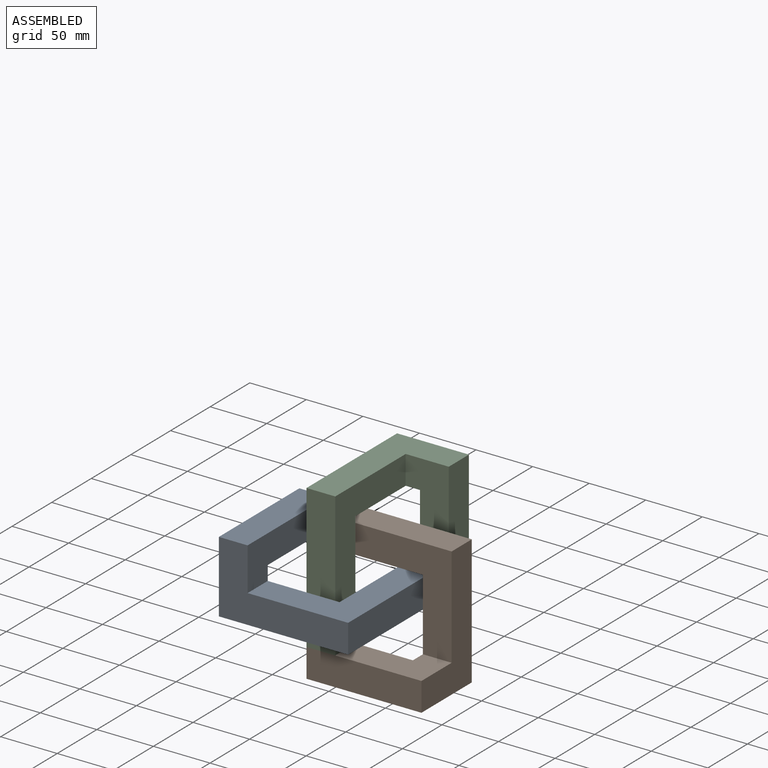
[diagram: assembled view]
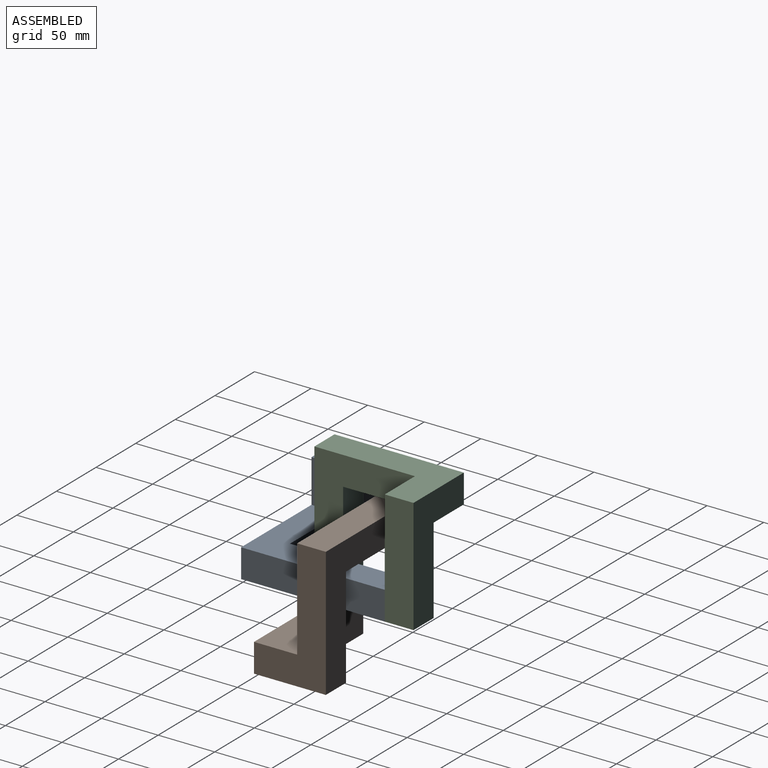
[diagram: assembled view, second angle]
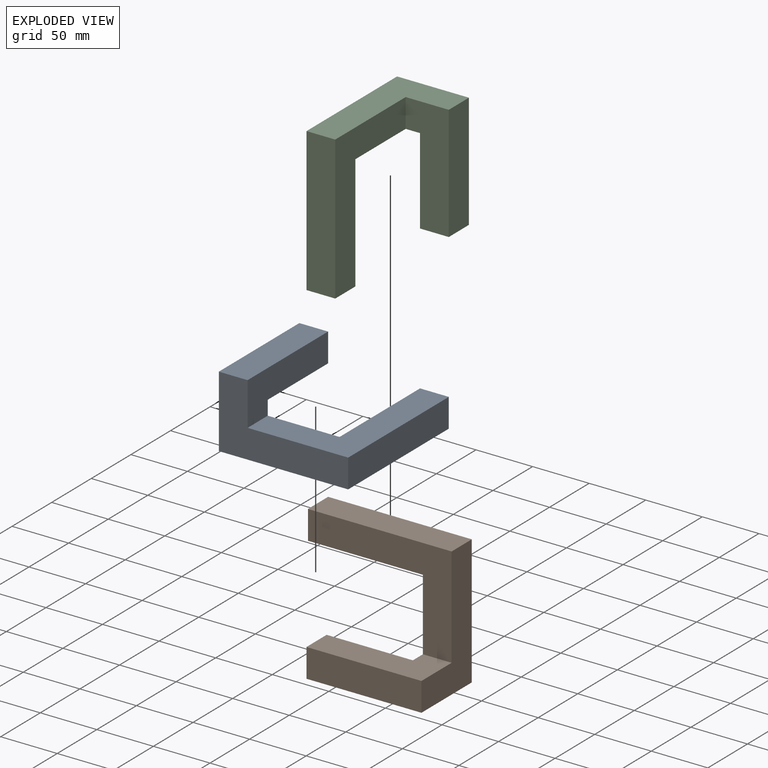
[diagram: exploded view]
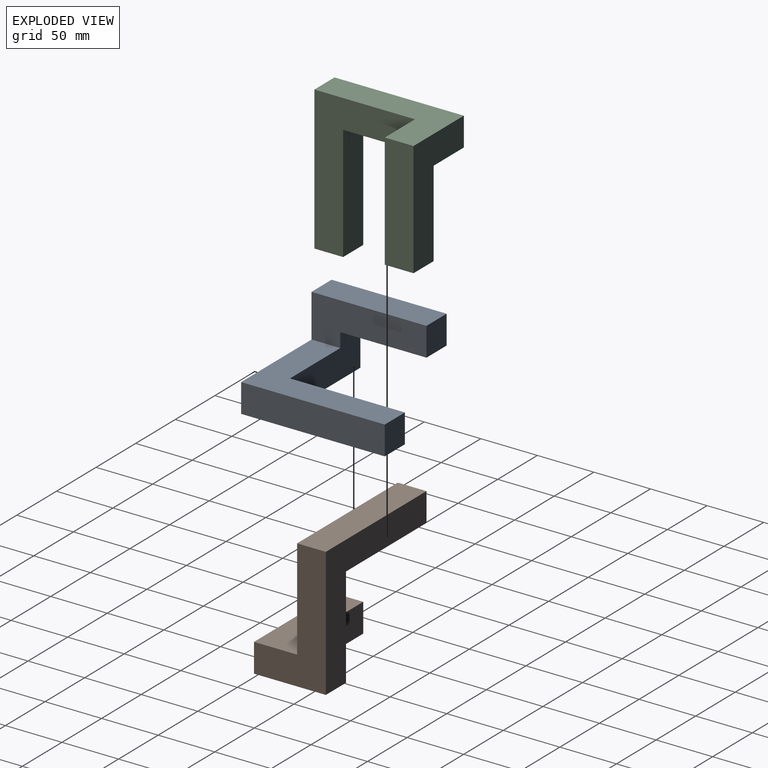
[diagram: exploded view, second angle]
ASSEMBLY  parts=3 mates=6
PART A: 12 faces, bbox 114.3x127x63.5 mm
  f0: plane 88.9x38.1mm, normal (0,1,0), area 2580.6mm2, adj f1,f2,f4,f5,f8,f10
  f1: plane 101.6x63.5mm, normal (-1,0,0), area 3548.4mm2, adj f0,f2,f6,f7,f8,f9
  f2: plane 127x114.3mm, normal (0,0,-1), area 5483.9mm2, adj f0,f1,f3,f7,f10,f11
  f3: plane 127x25.4mm, normal (1,0,0), area 3225.8mm2, adj f2,f4,f7,f11
  f4: plane 127x88.9mm, normal (0,0,1), area 4838.7mm2, adj f0,f3,f5,f7,f10,f11
  f5: plane 101.6x38.1mm, normal (1,0,0), area 2903.2mm2, adj f0,f4,f6,f7,f8,f9
  f6: plane 101.6x25.4mm, normal (0,0,1), area 2580.6mm2, adj f1,f5,f7,f9
  f7: plane 114.3x63.5mm, normal (0,-1,0), area 3871mm2, adj f1,f2,f3,f4,f5,f6
  f8: plane 76.2x25.4mm, normal (0,0,-1), area 1935.5mm2, adj f0,f1,f5,f9
  f9: plane 25.4x25.4mm, normal (0,1,0), area 645.2mm2, adj f1,f5,f6,f8
  f10: plane 101.6x25.4mm, normal (-1,0,0), area 2580.6mm2, adj f0,f2,f4,f11
  f11: plane 25.4x25.4mm, normal (0,1,0), area 645.2mm2, adj f2,f3,f4,f10
PART B: same geometry as A
PART C: same geometry as A
PLACE A t=(-121.46,13.27,-4.89)mm fixed
PLACE B rot(axis=(0.58,-0.58,0.58),120deg) t=(30.94,114.87,-55.69)mm
PLACE C rot(axis=(-0.58,0.58,-0.58),120deg) t=(-70.66,165.67,96.71)mm
MATE planar A.f2 <-> C.f9  axis (0,0,-1) through (-7.16,140.27,-4.89)mm
MATE planar C.f5 <-> A.f11  axis (0,-1,0) through (-21.98,140.27,50.14)mm
MATE planar C.f2 <-> B.f9  axis (-1,0,0) through (-70.66,76.77,20.51)mm
MATE planar A.f9 <-> B.f2  axis (0,1,0) through (-108.76,114.87,45.91)mm
MATE planar A.f5 <-> B.f11  axis (1,0,0) through (-96.06,59.84,43.79)mm
MATE planar A.f6 <-> B.f3  axis (0,0,1) through (-108.76,64.07,58.61)mm
